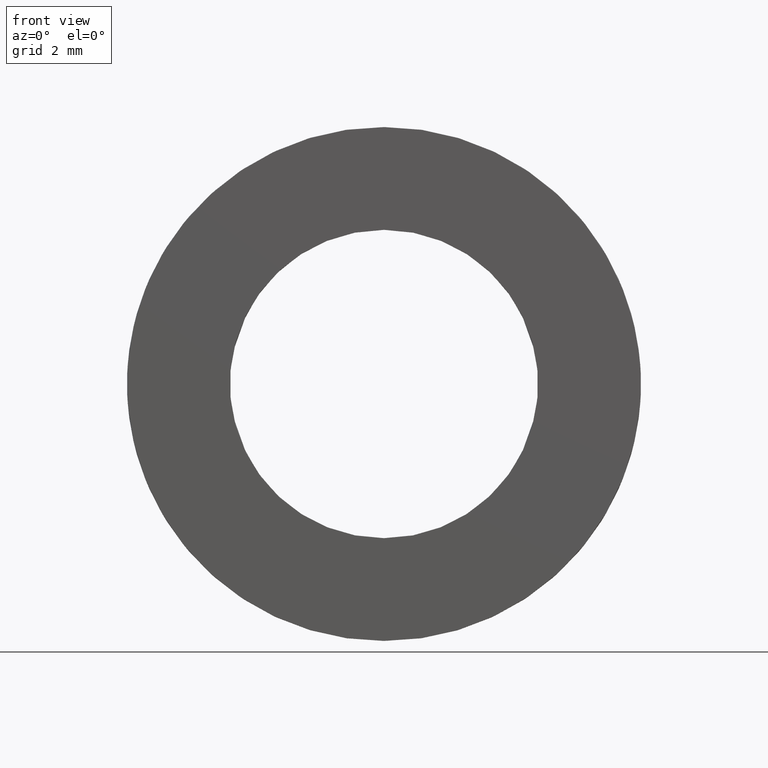
[diagram: clean part render]
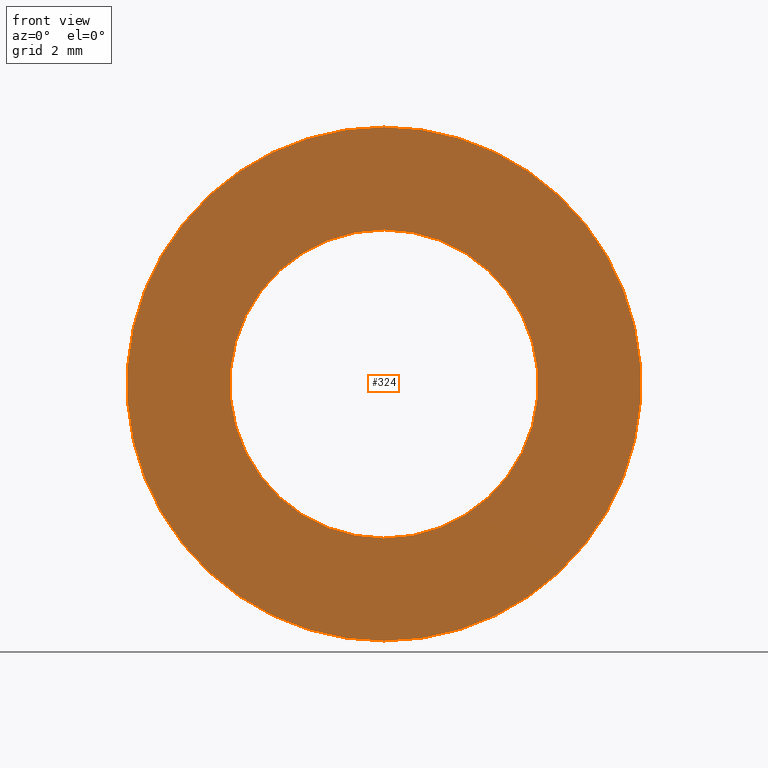
[diagram: same view with one face highlighted and labeled with its STEP entity id]
A machine part, front view. The second image highlights one B-rep face of the part: STEP entity #324.
In plain terms, the highlighted planar face has unit normal (-0, 1, 0).
Its self-contained STEP definition (entity closure, byte-faithful):
#39 = AXIS2_PLACEMENT_3D ( 'NONE', #365, #49, #279 ) ;
#49 = DIRECTION ( 'NONE',  ( -0.0000000000000000000, 1.000000000000000000, -0.0000000000000000000 ) ) ;
#56 = DIRECTION ( 'NONE',  ( 0.0000000000000000000, 0.0000000000000000000, 1.000000000000000000 ) ) ;
#64 = CARTESIAN_POINT ( 'NONE',  ( 5.510910596163098400E-016, -4.464249787179428900, -4.500000000000007100 ) ) ;
#76 = ORIENTED_EDGE ( 'NONE', *, *, #382, .T. ) ;
#88 = CIRCLE ( 'NONE', #196, 7.500000000000007100 ) ;
#89 = VERTEX_POINT ( 'NONE', #479 ) ;
#101 = CARTESIAN_POINT ( 'NONE',  ( 0.0000000000000000000, -4.464249787179428900, 0.0000000000000000000 ) ) ;
#124 = AXIS2_PLACEMENT_3D ( 'NONE', #498, #501, #558 ) ;
#157 = CARTESIAN_POINT ( 'NONE',  ( 9.184850993605157800E-016, -4.464249787179428900, -7.500000000000007100 ) ) ;
#158 = AXIS2_PLACEMENT_3D ( 'NONE', #101, #419, #56 ) ;
#196 = AXIS2_PLACEMENT_3D ( 'NONE', #289, #235, #553 ) ;
#200 = FACE_BOUND ( 'NONE', #338, .T. ) ;
#212 = AXIS2_PLACEMENT_3D ( 'NONE', #461, #336, #366 ) ;
#235 = DIRECTION ( 'NONE',  ( -0.0000000000000000000, 1.000000000000000000, -0.0000000000000000000 ) ) ;
#262 = ORIENTED_EDGE ( 'NONE', *, *, #376, .F. ) ;
#279 = DIRECTION ( 'NONE',  ( 0.0000000000000000000, 0.0000000000000000000, 1.000000000000000000 ) ) ;
#286 = CIRCLE ( 'NONE', #212, 4.500000000000007100 ) ;
#287 = EDGE_CURVE ( 'NONE', #519, #554, #405, .T. ) ;
#289 = CARTESIAN_POINT ( 'NONE',  ( 0.0000000000000000000, -4.464249787179428900, 0.0000000000000000000 ) ) ;
#290 = PLANE ( 'NONE',  #124 ) ;
#312 = EDGE_CURVE ( 'NONE', #89, #427, #88, .T. ) ;
#324 = ADVANCED_FACE ( 'NONE', ( #449, #200 ), #290, .F. ) ;
#336 = DIRECTION ( 'NONE',  ( -0.0000000000000000000, 1.000000000000000000, -0.0000000000000000000 ) ) ;
#338 = EDGE_LOOP ( 'NONE', ( #76, #583 ) ) ;
#349 = CARTESIAN_POINT ( 'NONE',  ( 0.0000000000000000000, -4.464249787179428900, 4.500000000000007100 ) ) ;
#365 = CARTESIAN_POINT ( 'NONE',  ( 0.0000000000000000000, -4.464249787179428900, 0.0000000000000000000 ) ) ;
#366 = DIRECTION ( 'NONE',  ( 0.0000000000000000000, 0.0000000000000000000, 1.000000000000000000 ) ) ;
#376 = EDGE_CURVE ( 'NONE', #427, #89, #433, .T. ) ;
#382 = EDGE_CURVE ( 'NONE', #554, #519, #286, .T. ) ;
#405 = CIRCLE ( 'NONE', #39, 4.500000000000007100 ) ;
#419 = DIRECTION ( 'NONE',  ( -0.0000000000000000000, 1.000000000000000000, -0.0000000000000000000 ) ) ;
#427 = VERTEX_POINT ( 'NONE', #157 ) ;
#433 = CIRCLE ( 'NONE', #158, 7.500000000000007100 ) ;
#449 = FACE_OUTER_BOUND ( 'NONE', #467, .T. ) ;
#461 = CARTESIAN_POINT ( 'NONE',  ( 0.0000000000000000000, -4.464249787179428900, 0.0000000000000000000 ) ) ;
#467 = EDGE_LOOP ( 'NONE', ( #573, #262 ) ) ;
#479 = CARTESIAN_POINT ( 'NONE',  ( 0.0000000000000000000, -4.464249787179428900, 7.500000000000007100 ) ) ;
#498 = CARTESIAN_POINT ( 'NONE',  ( 4.500000000000007100, -4.464249787179429800, 0.0000000000000000000 ) ) ;
#501 = DIRECTION ( 'NONE',  ( -0.0000000000000000000, 1.000000000000000000, 0.0000000000000000000 ) ) ;
#519 = VERTEX_POINT ( 'NONE', #64 ) ;
#553 = DIRECTION ( 'NONE',  ( 0.0000000000000000000, 0.0000000000000000000, 1.000000000000000000 ) ) ;
#554 = VERTEX_POINT ( 'NONE', #349 ) ;
#558 = DIRECTION ( 'NONE',  ( 0.0000000000000000000, 0.0000000000000000000, 1.000000000000000000 ) ) ;
#573 = ORIENTED_EDGE ( 'NONE', *, *, #312, .F. ) ;
#583 = ORIENTED_EDGE ( 'NONE', *, *, #287, .T. ) ;